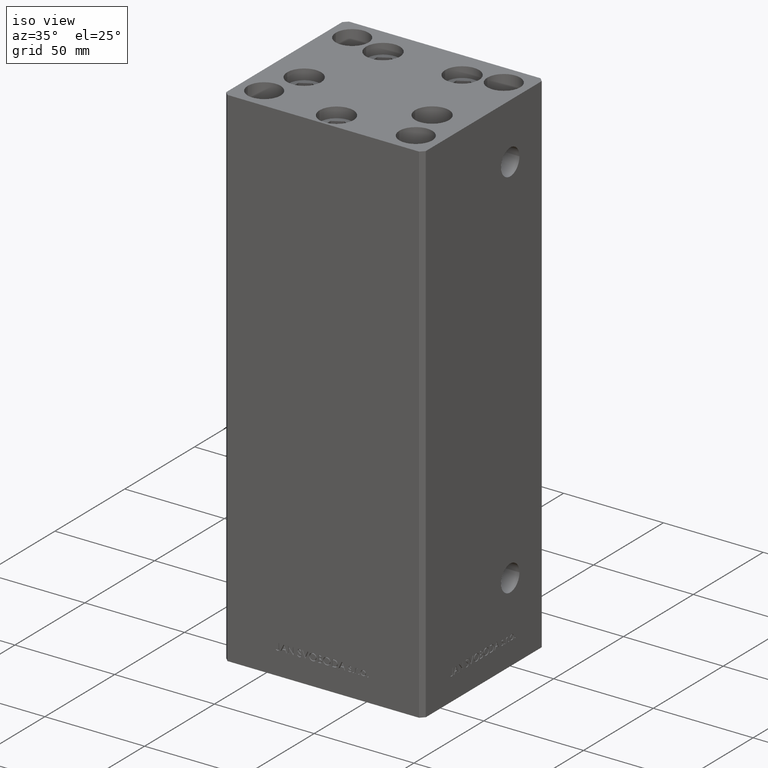
[diagram: clean part render]
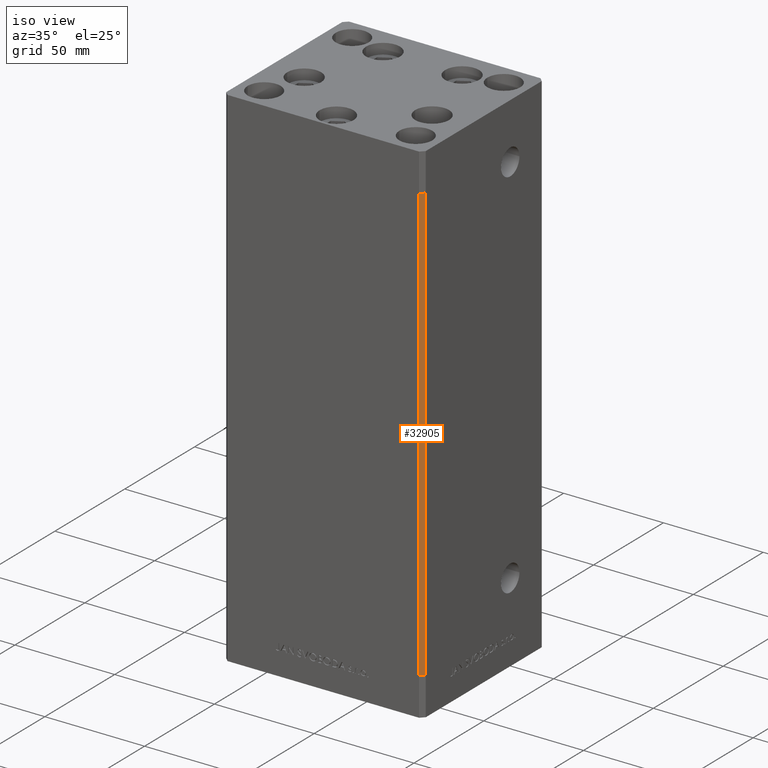
[diagram: same view with one face highlighted and labeled with its STEP entity id]
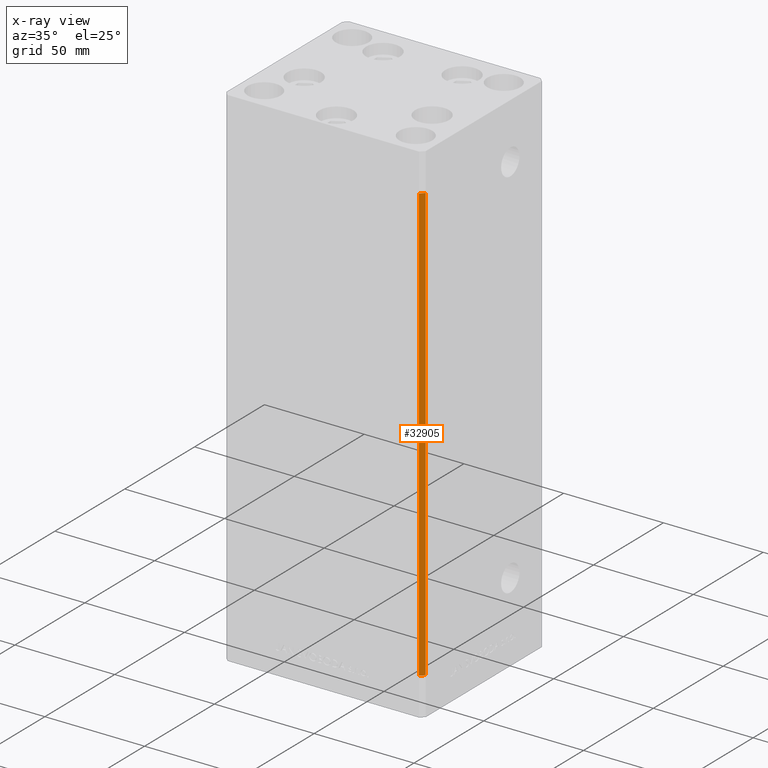
[diagram: x-ray of the same camera — body ghosted, the highlighted face saturated]
A machine part, iso view. The second image highlights one B-rep face of the part: STEP entity #32905.
The next image is the same camera in x-ray: the body ghosted, the highlighted face saturated — about 0% of this face is hidden behind the body in this view.
In plain terms, the highlighted planar face has unit normal (0.7071, -0.7071, 0).
Its self-contained STEP definition (entity closure, byte-faithful):
#16 = ORIENTED_EDGE ( 'NONE', *, *, #7142, .T. ) ;
#564 = VERTEX_POINT ( 'NONE', #49596 ) ;
#1604 = VECTOR ( 'NONE', #36048, 1000.000000000000114 ) ;
#2521 = DIRECTION ( 'NONE',  ( -0.7071067811865474617, -0.7071067811865474617, 0.000000000000000000 ) ) ;
#2527 = EDGE_CURVE ( 'NONE', #32957, #11853, #5964, .T. ) ;
#4239 = CARTESIAN_POINT ( 'NONE',  ( 47.99999999999998579, -43.50000000000000000, 218.5000000000000000 ) ) ;
#4488 = DIRECTION ( 'NONE',  ( -0.000000000000000000, -0.000000000000000000, -1.000000000000000000 ) ) ;
#5964 = LINE ( 'NONE', #17524, #1604 ) ;
#7142 = EDGE_CURVE ( 'NONE', #11853, #564, #38830, .T. ) ;
#9539 = CARTESIAN_POINT ( 'NONE',  ( 49.99999999999998579, -41.49999999999999289, 218.5000000000000000 ) ) ;
#11853 = VERTEX_POINT ( 'NONE', #43871 ) ;
#11999 = AXIS2_PLACEMENT_3D ( 'NONE', #9539, #44380, #36861 ) ;
#12373 = VERTEX_POINT ( 'NONE', #31513 ) ;
#17357 = CARTESIAN_POINT ( 'NONE',  ( 49.99999999999998579, -41.49999999999999289, 0.000000000000000000 ) ) ;
#17524 = CARTESIAN_POINT ( 'NONE',  ( 49.99999999999998579, -41.49999999999999289, 218.5000000000000000 ) ) ;
#19264 = LINE ( 'NONE', #45798, #21359 ) ;
#20785 = EDGE_CURVE ( 'NONE', #32957, #12373, #19264, .T. ) ;
#21111 = ORIENTED_EDGE ( 'NONE', *, *, #2527, .T. ) ;
#21349 = FACE_OUTER_BOUND ( 'NONE', #45689, .T. ) ;
#21359 = VECTOR ( 'NONE', #26263, 1000.000000000000000 ) ;
#26263 = DIRECTION ( 'NONE',  ( -0.000000000000000000, -0.000000000000000000, -1.000000000000000000 ) ) ;
#26854 = ORIENTED_EDGE ( 'NONE', *, *, #44772, .F. ) ;
#31513 = CARTESIAN_POINT ( 'NONE',  ( 49.99999999999998579, -41.49999999999999289, 0.000000000000000000 ) ) ;
#32905 = ADVANCED_FACE ( 'NONE', ( #21349 ), #48859, .T. ) ;
#32957 = VERTEX_POINT ( 'NONE', #40369 ) ;
#35155 = ORIENTED_EDGE ( 'NONE', *, *, #20785, .F. ) ;
#36048 = DIRECTION ( 'NONE',  ( -0.7071067811865474617, -0.7071067811865474617, 0.000000000000000000 ) ) ;
#36861 = DIRECTION ( 'NONE',  ( 0.7071067811865474617, 0.7071067811865474617, 0.000000000000000000 ) ) ;
#36877 = LINE ( 'NONE', #17357, #39472 ) ;
#38830 = LINE ( 'NONE', #4239, #43365 ) ;
#39472 = VECTOR ( 'NONE', #2521, 1000.000000000000114 ) ;
#40369 = CARTESIAN_POINT ( 'NONE',  ( 49.99999999999998579, -41.49999999999999289, 218.5000000000000000 ) ) ;
#43365 = VECTOR ( 'NONE', #4488, 1000.000000000000000 ) ;
#43871 = CARTESIAN_POINT ( 'NONE',  ( 47.99999999999998579, -43.50000000000000000, 218.5000000000000000 ) ) ;
#44380 = DIRECTION ( 'NONE',  ( 0.7071067811865475727, -0.7071067811865475727, 0.000000000000000000 ) ) ;
#44772 = EDGE_CURVE ( 'NONE', #12373, #564, #36877, .T. ) ;
#45689 = EDGE_LOOP ( 'NONE', ( #26854, #35155, #21111, #16 ) ) ;
#45798 = CARTESIAN_POINT ( 'NONE',  ( 49.99999999999998579, -41.49999999999999289, 218.5000000000000000 ) ) ;
#48859 = PLANE ( 'NONE',  #11999 ) ;
#49596 = CARTESIAN_POINT ( 'NONE',  ( 47.99999999999998579, -43.50000000000000000, 0.000000000000000000 ) ) ;